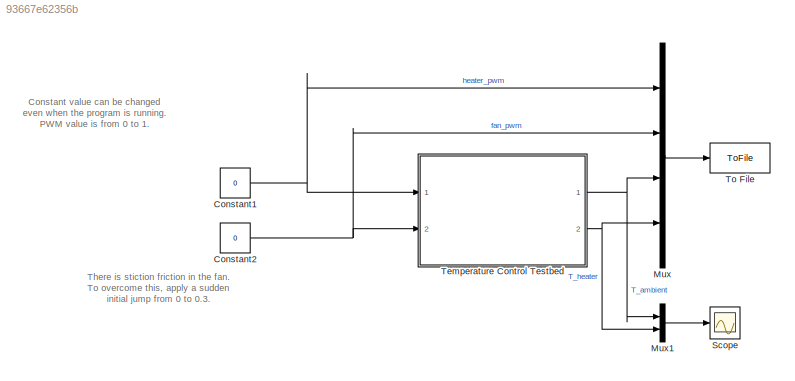
MODEL slx_93667e62356b
KIND model
CONFIG AbsTol = auto
CONFIG EnableMultiTasking = on
CONFIG FixedStep = 1e-3
CONFIG MaxStep = auto
CONFIG MinStep = auto
CONFIG PreLoadFcn = initialize;
CONFIG RelTol = 1e-3
CONFIG SampleTimeConstraint = Unconstrained
CONFIG SolverName = ode2
CONFIG StartTime = 0.0
CONFIG StopTime = inf
BLOCK [Constant] Constant1
  Value = 0
BLOCK [Constant] Constant2
  Value = 0
BLOCK [Mux] Mux
  DisplayOption = bar
  Ports = [4, 1]
BLOCK [Mux] Mux1
  DisplayOption = bar
  Inputs = 2
  Ports = [2, 1]
BLOCK [Scope] Scope
  Floating = off
  NumInputPorts = 1
  Ports = [1]
  ScopeSpecificationString = Simulink.scopes.TimeScopeBlockCfg('CurrentConfiguration', extmgr.ConfigurationSet(extmgr.Configuration('Core','General UI',true),extmgr.Configuration('Core','Source UI',true),extmgr.Configuration('Sources','WiredSimulink',true),extmgr.Configuration('Visuals','Time Domain',true,'SerializedDisplays',{struct('MinYLimReal','2.83199','MaxYLimReal','31.96615','YLabelReal','','MinYLimMag','2.83199','MaxY...<+1404ch>
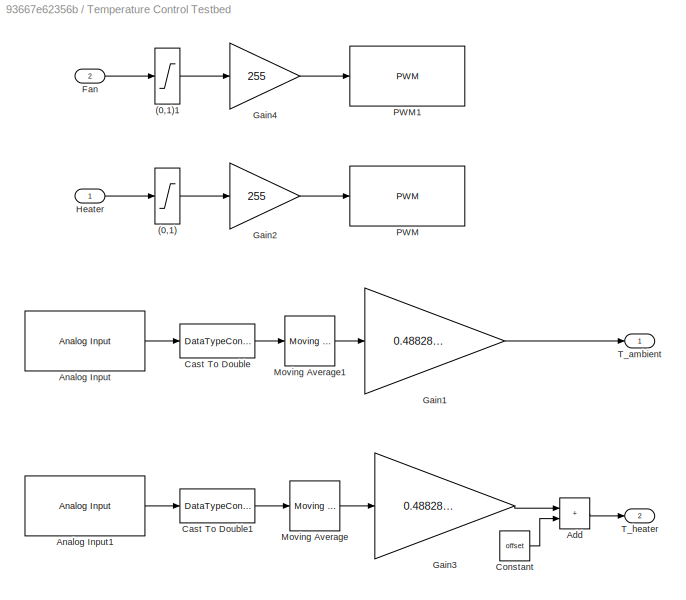
BLOCK [SubSystem] Temperature Control Testbed
  Ports = [2, 2]
  RequestExecContextInheritance = off
BLOCK [Saturate] Temperature Control Testbed/(0,1)
  LowerLimit = 0
  UpperLimit = 1
BLOCK [Saturate] Temperature Control Testbed/(0,1)1
  LowerLimit = 0
  UpperLimit = 1
BLOCK [Sum] Temperature Control Testbed/Add
  IconShape = rectangular
  Ports = [2, 1]
BLOCK [Reference] Temperature Control Testbed/Analog Input  REF=arduinolib/Analog Input
  Ports = [0, 1]
  SourceBlock = arduinolib/Analog Input
  SourceProductBaseCode = ARDUINO
  SourceType = Arduino Analog Input
BLOCK [Reference] Temperature Control Testbed/Analog Input1  REF=arduinolib/Analog Input
  Ports = [0, 1]
  SourceBlock = arduinolib/Analog Input
  SourceProductBaseCode = ARDUINO
  SourceType = Arduino Analog Input
BLOCK [DataTypeConversion] Temperature Control Testbed/Cast To Double
  OutDataTypeStr = double
  RndMeth = Floor
  SaturateOnIntegerOverflow = off
BLOCK [DataTypeConversion] Temperature Control Testbed/Cast To Double1
  OutDataTypeStr = double
  RndMeth = Floor
  SaturateOnIntegerOverflow = off
BLOCK [Constant] Temperature Control Testbed/Constant
  Value = offset
BLOCK [Inport] Temperature Control Testbed/Fan
  Port = 2
BLOCK [Gain] Temperature Control Testbed/Gain1
  Gain = 0.48828125
BLOCK [Gain] Temperature Control Testbed/Gain2
  Gain = 255
BLOCK [Gain] Temperature Control Testbed/Gain3
  Gain = 0.48828125
BLOCK [Gain] Temperature Control Testbed/Gain4
  Gain = 255
BLOCK [Inport] Temperature Control Testbed/Heater
BLOCK [Reference] Temperature Control Testbed/Moving Average  REF=dspstat3/Moving
Average
  Ports = [1, 1]
  SourceBlock = dspstat3/Moving\nAverage
  SourceProductBaseCode = DS
  SourceType = dsp.simulink.MovingAverage
BLOCK [Reference] Temperature Control Testbed/Moving Average1  REF=dspstat3/Moving
Average
  Ports = [1, 1]
  SourceBlock = dspstat3/Moving\nAverage
  SourceProductBaseCode = DS
  SourceType = dsp.simulink.MovingAverage
BLOCK [Reference] Temperature Control Testbed/PWM  REF=arduinolib/PWM
  Ports = [1]
  SourceBlock = arduinolib/PWM
  SourceProductBaseCode = ARDUINO
  SourceType = Arduino PWM
BLOCK [Reference] Temperature Control Testbed/PWM1  REF=arduinolib/PWM
  Ports = [1]
  SourceBlock = arduinolib/PWM
  SourceProductBaseCode = ARDUINO
  SourceType = Arduino PWM
BLOCK [Outport] Temperature Control Testbed/T_ambient
  VectorParamsAs1DForOutWhenUnconnected = off
BLOCK [Outport] Temperature Control Testbed/T_heater
  Port = 2
  VectorParamsAs1DForOutWhenUnconnected = off
BLOCK [ToFile] To File
  Filename = datalog.mat
  MatrixName = datalog
  Ports = [1]
ANNOTATION (root): Constant value can be changed even when the program is running. PWM value is from 0 to 1.
ANNOTATION (root): There is stiction friction in the fan. To overcome this, apply a sudden initial jump from 0 to 0.3.
NET Constant1:1 -> Mux:1, Temperature Control Testbed:1
NET Constant2:1 -> Mux:2, Temperature Control Testbed:2
LINE Mux1:1 -> Scope:1
LINE Mux:1 -> To File:1
LINE Temperature Control Testbed/(0,1)1:1 -> Temperature Control Testbed/Gain4:1
LINE Temperature Control Testbed/(0,1):1 -> Temperature Control Testbed/Gain2:1
LINE Temperature Control Testbed/Add:1 -> Temperature Control Testbed/T_heater:1
LINE Temperature Control Testbed/Analog Input1:1 -> Temperature Control Testbed/Cast To Double1:1
LINE Temperature Control Testbed/Analog Input:1 -> Temperature Control Testbed/Cast To Double:1
LINE Temperature Control Testbed/Cast To Double1:1 -> Temperature Control Testbed/Moving Average:1
LINE Temperature Control Testbed/Cast To Double:1 -> Temperature Control Testbed/Moving Average1:1
LINE Temperature Control Testbed/Constant:1 -> Temperature Control Testbed/Add:2
LINE Temperature Control Testbed/Fan:1 -> Temperature Control Testbed/(0,1)1:1
LINE Temperature Control Testbed/Gain1:1 -> Temperature Control Testbed/T_ambient:1
LINE Temperature Control Testbed/Gain2:1 -> Temperature Control Testbed/PWM:1
LINE Temperature Control Testbed/Gain3:1 -> Temperature Control Testbed/Add:1
LINE Temperature Control Testbed/Gain4:1 -> Temperature Control Testbed/PWM1:1
LINE Temperature Control Testbed/Heater:1 -> Temperature Control Testbed/(0,1):1
LINE Temperature Control Testbed/Moving Average1:1 -> Temperature Control Testbed/Gain1:1
LINE Temperature Control Testbed/Moving Average:1 -> Temperature Control Testbed/Gain3:1
NET Temperature Control Testbed:1 -> Mux1:1, Mux:3
NET Temperature Control Testbed:2 -> Mux1:2, Mux:4
note: NET lines group one-source signal fan-out (src -> all destinations, sorted); 1:1 wires keep LINE
